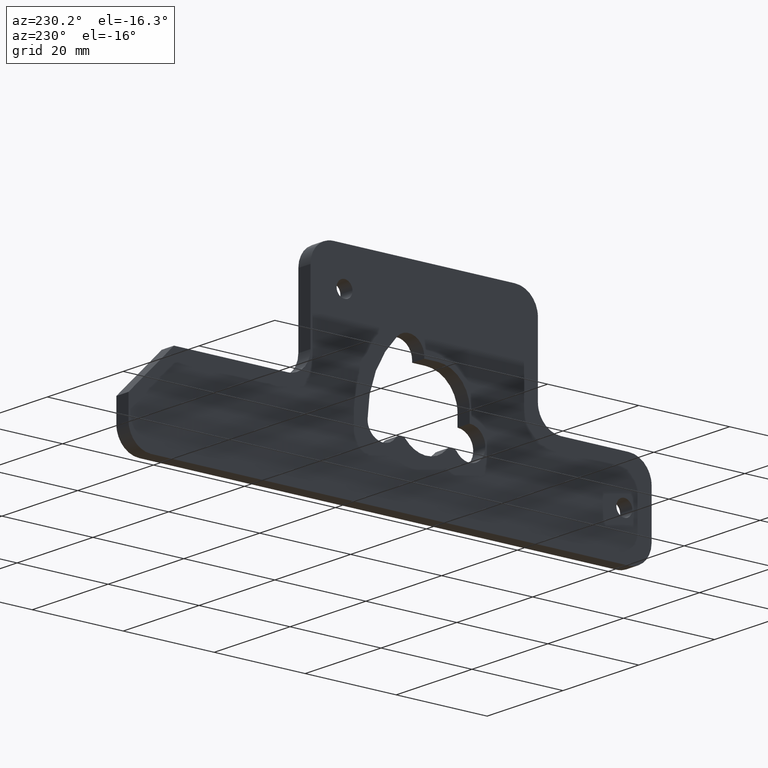
[diagram: clean part render]
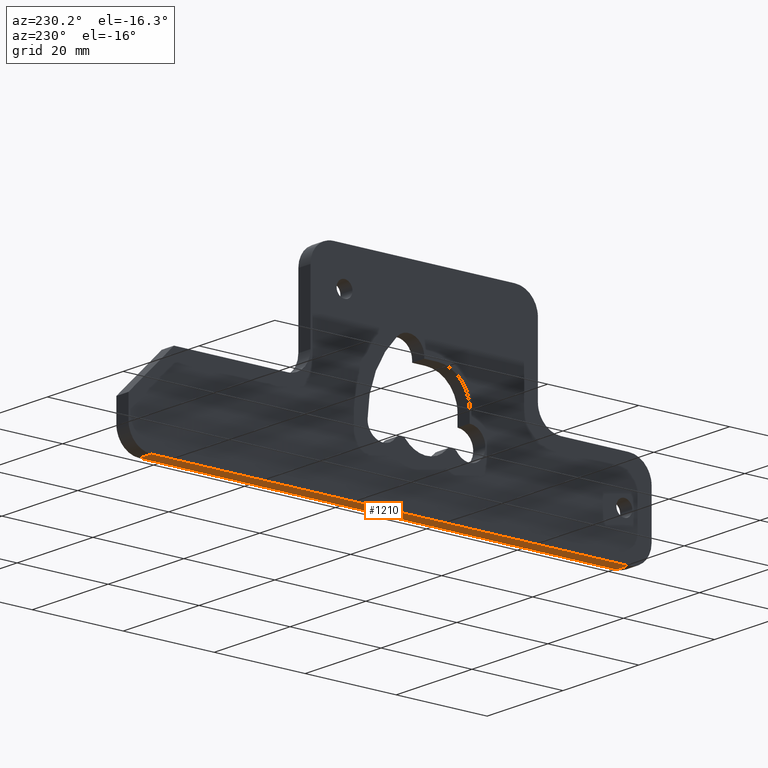
[diagram: same view with one face highlighted and labeled with its STEP entity id]
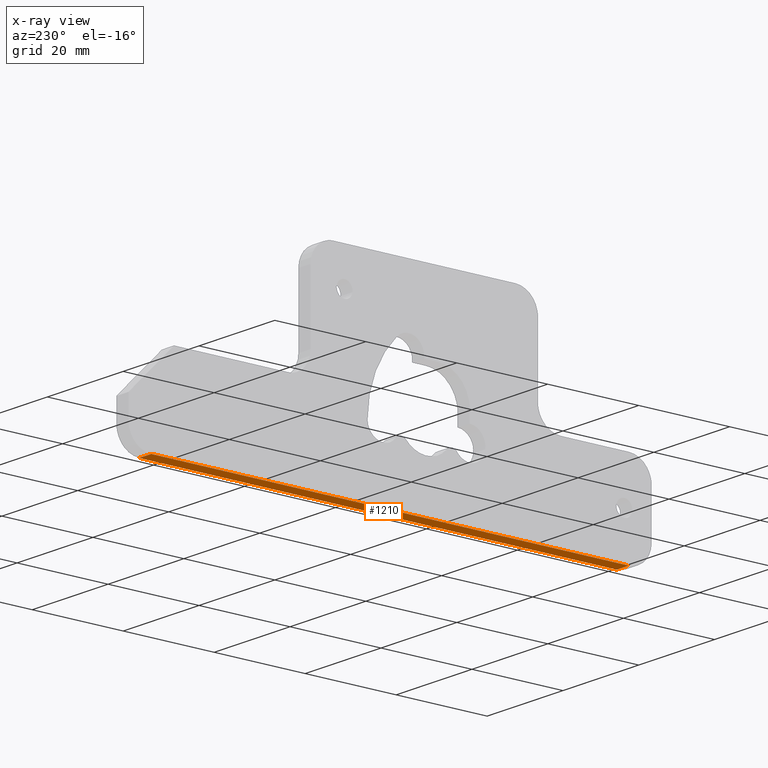
[diagram: x-ray of the same camera — body ghosted, the highlighted face saturated]
A machine part, auxiliary view. The second image highlights one B-rep face of the part: STEP entity #1210.
The next image is the same camera in x-ray: the body ghosted, the highlighted face saturated — about 0% of this face is hidden behind the body in this view.
In plain terms, the highlighted face is a freeform B-spline surface patch.
Its self-contained STEP definition (entity closure, byte-faithful):
#1144=CARTESIAN_POINT('',(0.0,-44.500000000000000,-15.0));
#1145=VERTEX_POINT('',#1144);
#1159=CARTESIAN_POINT('',(3.200000000000000,-44.500000000000000,-15.0));
#1160=VERTEX_POINT('',#1159);
#1161=CARTESIAN_POINT('',(3.200000000000000,-44.500000000000000,-15.0));
#1162=CARTESIAN_POINT('',(0.0,-44.500000000000000,-15.0));
#1163=QUASI_UNIFORM_CURVE('',1,(#1161,#1162),.UNSPECIFIED.,.F.,.U.);
#1164=EDGE_CURVE('',#1160,#1145,#1163,.T.);
#1183=CARTESIAN_POINT('',(-0.159839993797779,-49.744749796489629,-15.0));
#1184=CARTESIAN_POINT('',(-0.159839993797779,65.744752612809094,-15.0));
#1185=CARTESIAN_POINT('',(3.359840079628468,-49.744749796489629,-15.0));
#1186=CARTESIAN_POINT('',(3.359840079628468,65.744752612809094,-15.0));
#1187=B_SPLINE_SURFACE_WITH_KNOTS('',1,1,((#1183,#1185),(#1184,#1186)),.UNSPECIFIED.,.F.,.F.,.U.,(2,2),(2,2),(0.0,115.489502409298690),(0.0,3.519680073426247),.UNSPECIFIED.);
#1188=CARTESIAN_POINT('',(0.0,60.500000000000000,-14.999999999999799));
#1189=VERTEX_POINT('',#1188);
#1190=CARTESIAN_POINT('',(0.0,60.500000000000000,-14.999999999999799));
#1191=CARTESIAN_POINT('',(0.0,-44.500000000000000,-15.0));
#1192=QUASI_UNIFORM_CURVE('',1,(#1190,#1191),.UNSPECIFIED.,.F.,.U.);
#1193=EDGE_CURVE('',#1189,#1145,#1192,.T.);
#1194=ORIENTED_EDGE('',*,*,#1193,.F.);
#1195=CARTESIAN_POINT('',(3.200000000000000,60.500000000000000,-14.999999999999799));
#1196=VERTEX_POINT('',#1195);
#1197=CARTESIAN_POINT('',(3.200000000000000,60.500000000000000,-14.999999999999799));
#1198=CARTESIAN_POINT('',(0.0,60.500000000000000,-14.999999999999799));
#1199=QUASI_UNIFORM_CURVE('',1,(#1197,#1198),.UNSPECIFIED.,.F.,.U.);
#1200=EDGE_CURVE('',#1196,#1189,#1199,.T.);
#1201=ORIENTED_EDGE('',*,*,#1200,.F.);
#1202=CARTESIAN_POINT('',(3.200000000000000,60.500000000000000,-14.999999999999799));
#1203=CARTESIAN_POINT('',(3.200000000000000,-44.500000000000000,-15.0));
#1204=QUASI_UNIFORM_CURVE('',1,(#1202,#1203),.UNSPECIFIED.,.F.,.U.);
#1205=EDGE_CURVE('',#1196,#1160,#1204,.T.);
#1206=ORIENTED_EDGE('',*,*,#1205,.T.);
#1207=ORIENTED_EDGE('',*,*,#1164,.T.);
#1208=EDGE_LOOP('',(#1194,#1201,#1206,#1207));
#1209=FACE_OUTER_BOUND('',#1208,.T.);
#1210=ADVANCED_FACE('',(#1209),#1187,.T.);